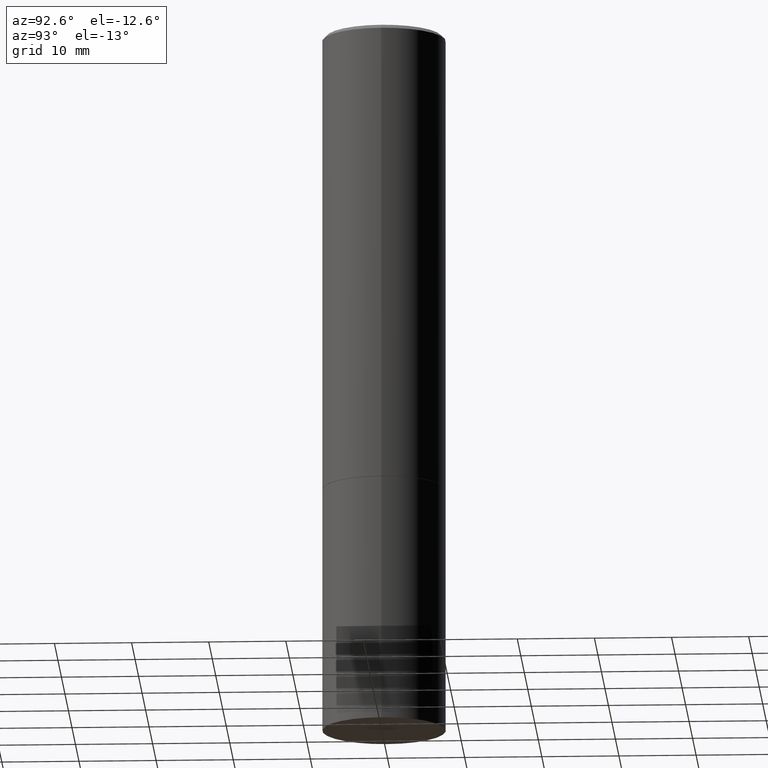
[diagram: clean part render]
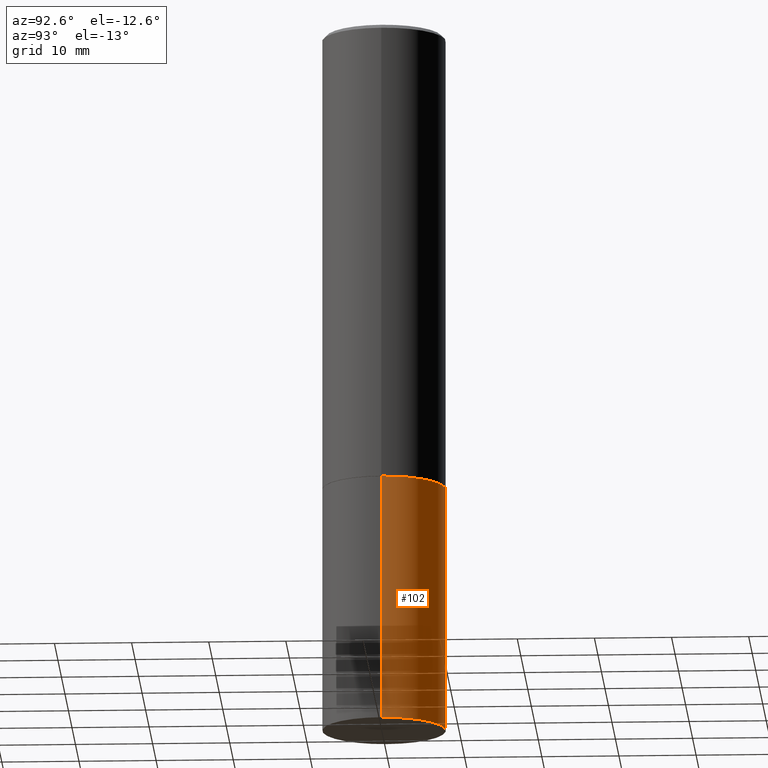
[diagram: same view with one face highlighted and labeled with its STEP entity id]
A machine part, auxiliary view. The second image highlights one B-rep face of the part: STEP entity #102.
In plain terms, the highlighted cylindrical surface (partial cylindrical patch) has radius 7.9997 mm, axis along (-0, 0, 1).
Its self-contained STEP definition (entity closure, byte-faithful):
#5 = EDGE_CURVE ( 'NONE', #196, #302, #31, .T. ) ;
#16 = FACE_OUTER_BOUND ( 'NONE', #294, .T. ) ;
#17 = DIRECTION ( 'NONE',  ( -2.445468806185136597E-29, 3.491481338843145583E-15, 1.000000000000000000 ) ) ;
#31 = LINE ( 'NONE', #313, #68 ) ;
#42 = DIRECTION ( 'NONE',  ( -2.445468806185136597E-29, 3.491481338843145583E-15, 1.000000000000000000 ) ) ;
#49 = DIRECTION ( 'NONE',  ( -2.445468806185136597E-29, 3.491481338843145583E-15, 1.000000000000000000 ) ) ;
#68 = VECTOR ( 'NONE', #110, 39.37007874015748143 ) ;
#80 = AXIS2_PLACEMENT_3D ( 'NONE', #301, #49, #164 ) ;
#83 = CARTESIAN_POINT ( 'NONE',  ( 8.857488016002564476E-29, -1.264614540928987199E-14, -3.621999999999999886 ) ) ;
#102 = ADVANCED_FACE ( 'NONE', ( #16 ), #184, .T. ) ;
#110 = DIRECTION ( 'NONE',  ( -2.445468806185136877E-29, 3.491481338843145188E-15, 1.000000000000000000 ) ) ;
#116 = VERTEX_POINT ( 'NONE', #256 ) ;
#124 = DIRECTION ( 'NONE',  ( 1.000000000000000000, -6.982962677686266711E-15, 4.876176775795936353E-29 ) ) ;
#131 = ORIENTED_EDGE ( 'NONE', *, *, #351, .F. ) ;
#134 = EDGE_CURVE ( 'NONE', #116, #280, #160, .T. ) ;
#135 = CIRCLE ( 'NONE', #211, 0.3149500000000000077 ) ;
#149 = AXIS2_PLACEMENT_3D ( 'NONE', #348, #42, #124 ) ;
#160 = LINE ( 'NONE', #260, #309 ) ;
#164 = DIRECTION ( 'NONE',  ( 1.000000000000000000, -6.982962677686266711E-15, 0.000000000000000000 ) ) ;
#184 = CYLINDRICAL_SURFACE ( 'NONE', #149, 0.3149500000000000077 ) ;
#186 = ORIENTED_EDGE ( 'NONE', *, *, #134, .F. ) ;
#196 = VERTEX_POINT ( 'NONE', #287 ) ;
#211 = AXIS2_PLACEMENT_3D ( 'NONE', #83, #17, #240 ) ;
#217 = CARTESIAN_POINT ( 'NONE',  ( 0.3149500000000000077, -1.044686131395256792E-14, -2.362199999999999633 ) ) ;
#236 = EDGE_CURVE ( 'NONE', #116, #196, #135, .T. ) ;
#240 = DIRECTION ( 'NONE',  ( 1.000000000000000000, -6.982962677686263555E-15, 0.000000000000000000 ) ) ;
#256 = CARTESIAN_POINT ( 'NONE',  ( 0.3149500000000000077, -1.484542950462716186E-14, -3.621999999999999886 ) ) ;
#260 = CARTESIAN_POINT ( 'NONE',  ( 0.3149500000000000077, -2.199284095337289871E-15, 1.535751875536930130E-29 ) ) ;
#261 = CARTESIAN_POINT ( 'NONE',  ( -0.3149500000000000077, -8.209006967676139823E-15, -2.362199999999999633 ) ) ;
#275 = ORIENTED_EDGE ( 'NONE', *, *, #236, .T. ) ;
#279 = ORIENTED_EDGE ( 'NONE', *, *, #5, .T. ) ;
#280 = VERTEX_POINT ( 'NONE', #217 ) ;
#287 = CARTESIAN_POINT ( 'NONE',  ( -0.3149500000000000077, -8.209006967676139823E-15, -3.621999999999999886 ) ) ;
#290 = DIRECTION ( 'NONE',  ( -2.445468806185136877E-29, 3.491481338843145188E-15, 1.000000000000000000 ) ) ;
#294 = EDGE_LOOP ( 'NONE', ( #275, #279, #131, #186 ) ) ;
#301 = CARTESIAN_POINT ( 'NONE',  ( 5.776686413970529753E-29, -8.247577218615278049E-15, -2.362199999999999633 ) ) ;
#302 = VERTEX_POINT ( 'NONE', #261 ) ;
#309 = VECTOR ( 'NONE', #290, 39.37007874015748143 ) ;
#313 = CARTESIAN_POINT ( 'NONE',  ( -0.3149500000000000077, 2.237854346276435590E-15, -1.549218606675782676E-29 ) ) ;
#319 = CIRCLE ( 'NONE', #80, 0.3149500000000000077 ) ;
#348 = CARTESIAN_POINT ( 'NONE',  ( 0.000000000000000000, 0.000000000000000000, 0.000000000000000000 ) ) ;
#351 = EDGE_CURVE ( 'NONE', #280, #302, #319, .T. ) ;